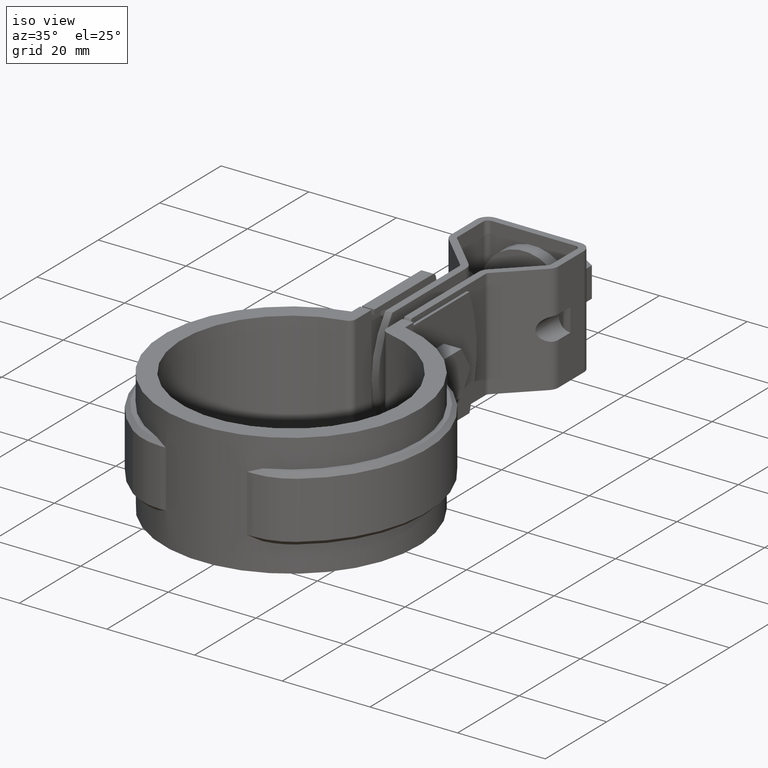
[diagram: clean part render]
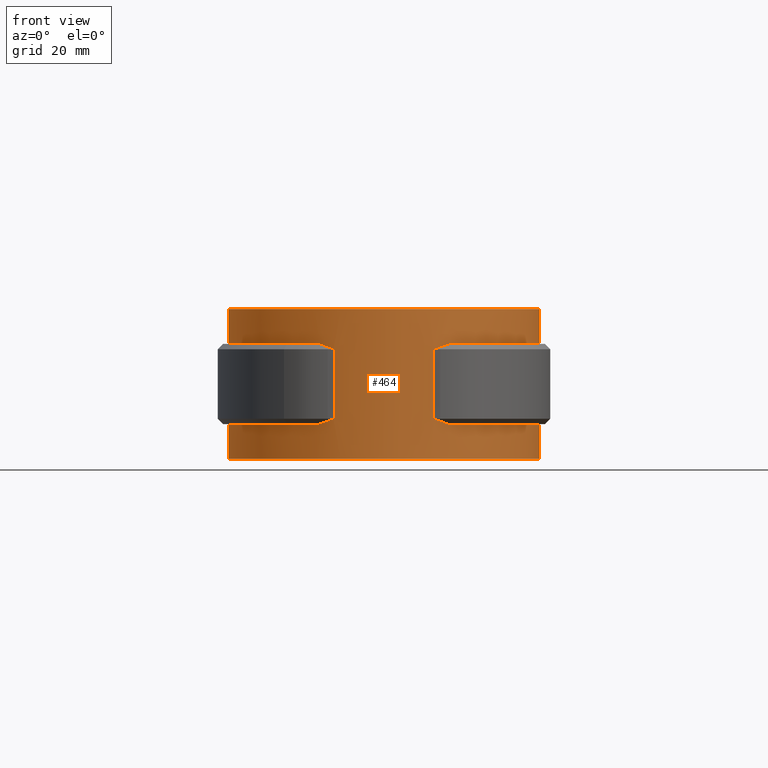
[diagram: tour spotlight — one face highlighted and labeled with its STEP entity id]
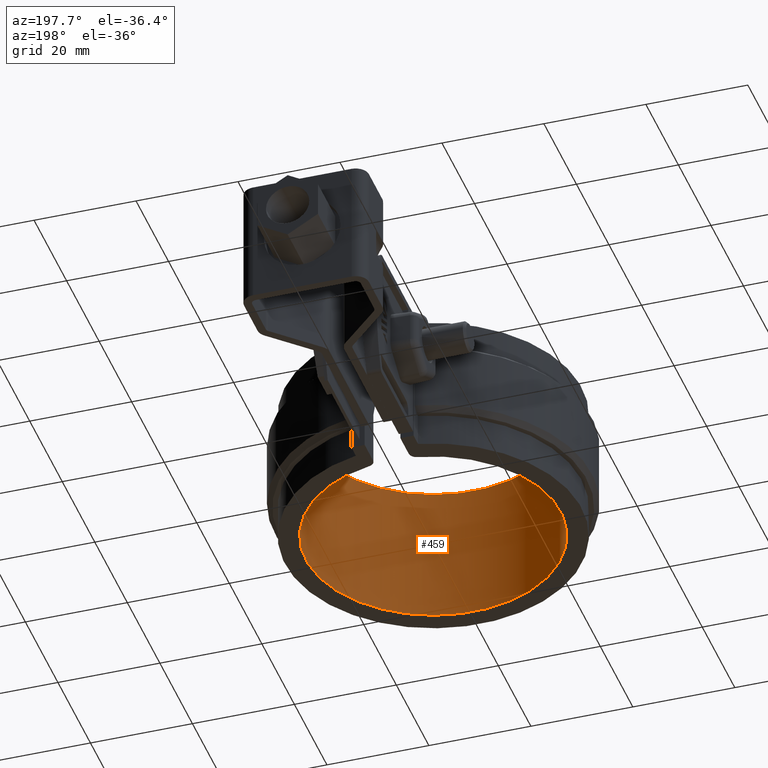
[diagram: tour spotlight — one face highlighted and labeled with its STEP entity id]
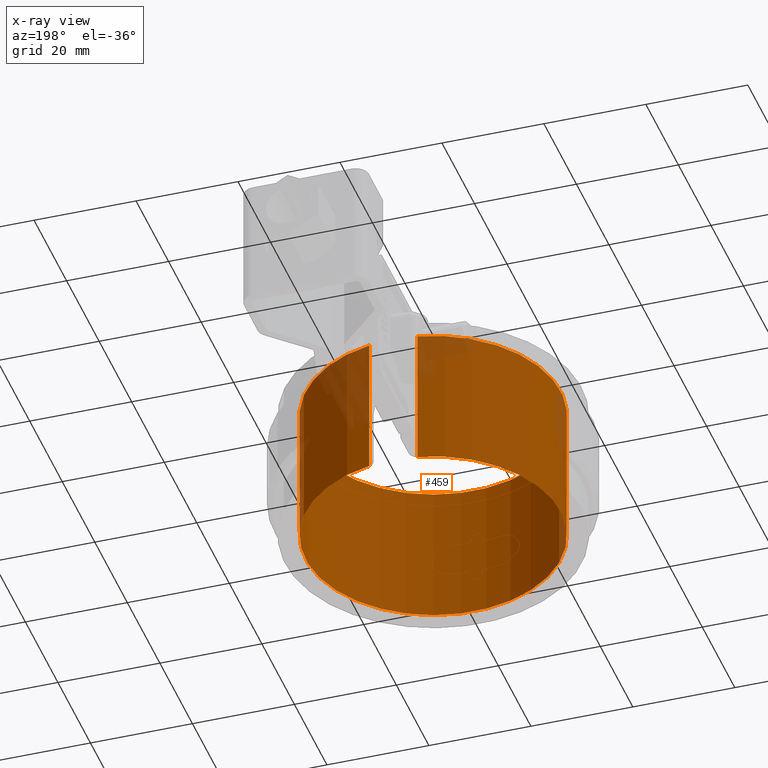
[diagram: x-ray of the same camera — body ghosted, this tour face saturated]
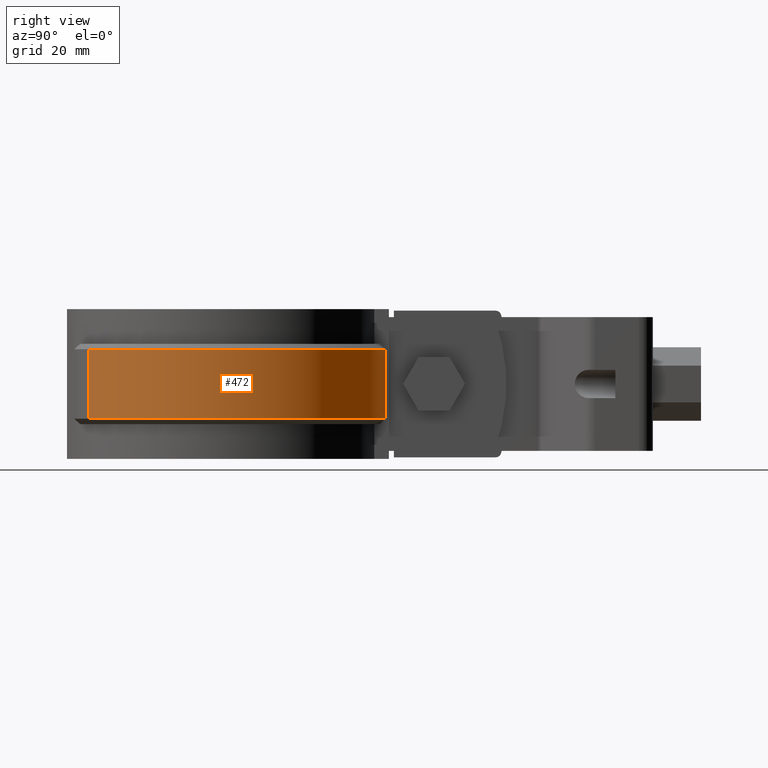
[diagram: tour spotlight — one face highlighted and labeled with its STEP entity id]
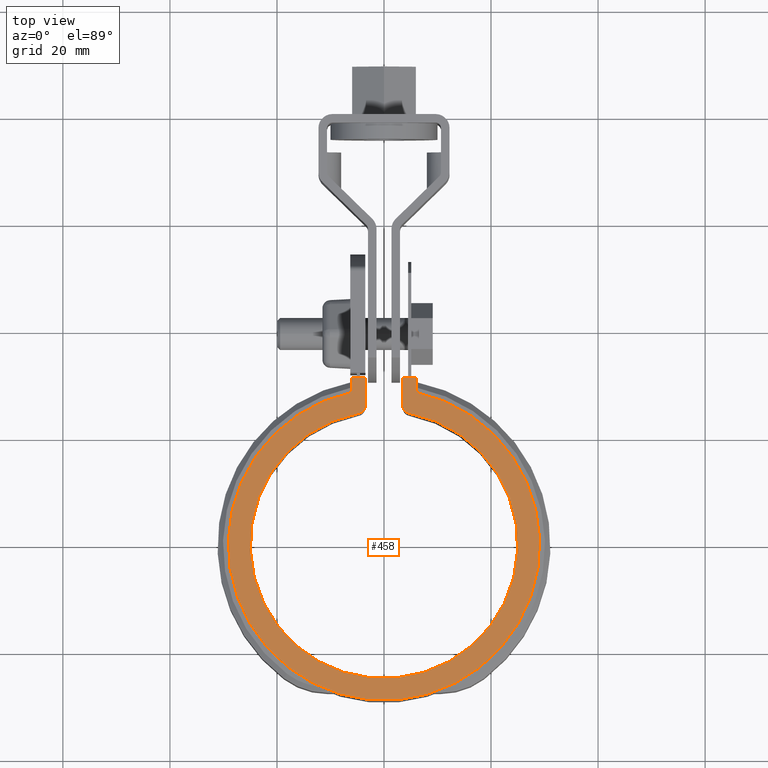
[diagram: tour spotlight — one face highlighted and labeled with its STEP entity id]
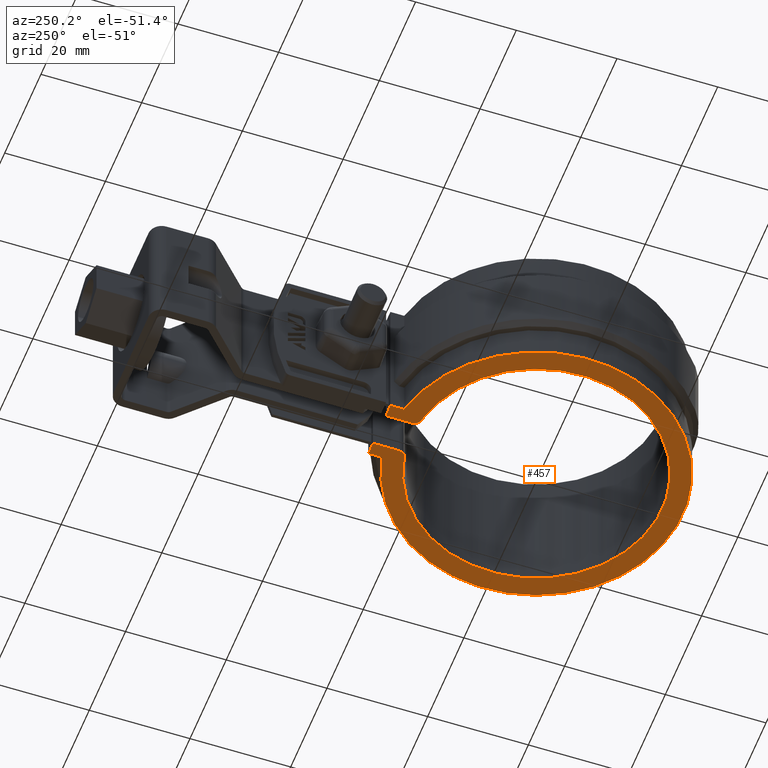
[diagram: tour spotlight — one face highlighted and labeled with its STEP entity id]
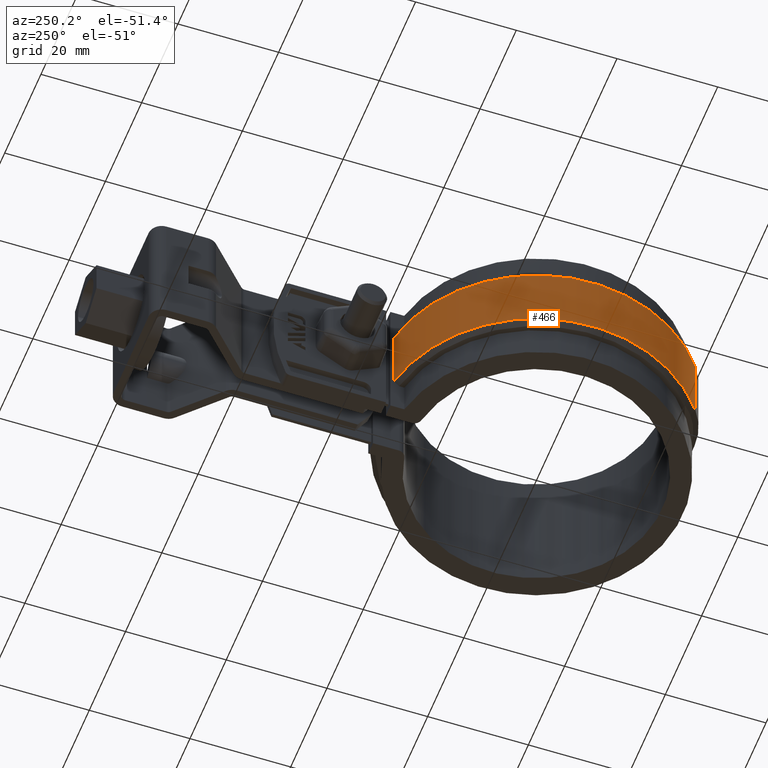
[diagram: tour spotlight — one face highlighted and labeled with its STEP entity id]
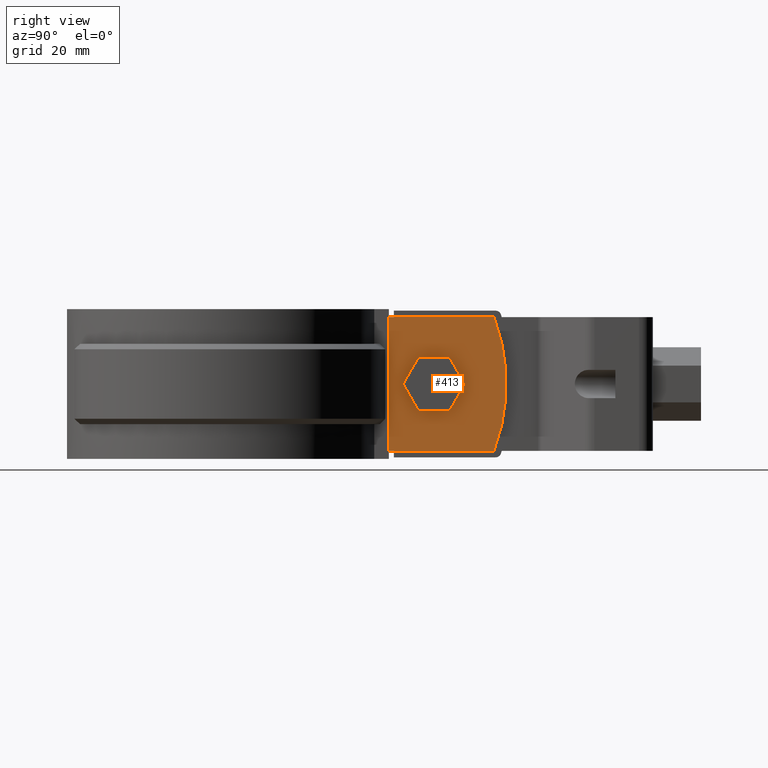
[diagram: tour spotlight — one face highlighted and labeled with its STEP entity id]
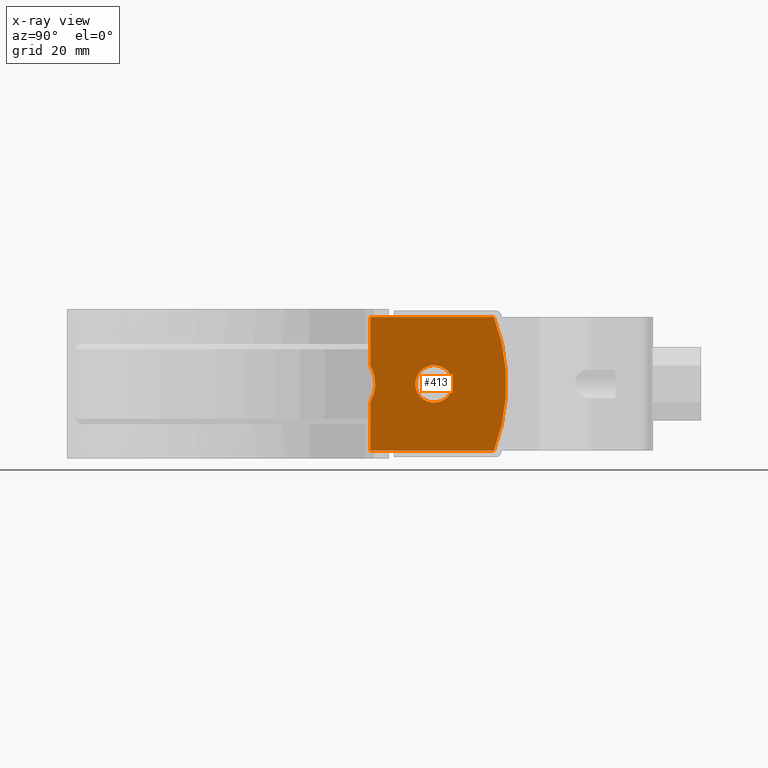
[diagram: x-ray of the same camera — body ghosted, this tour face saturated]
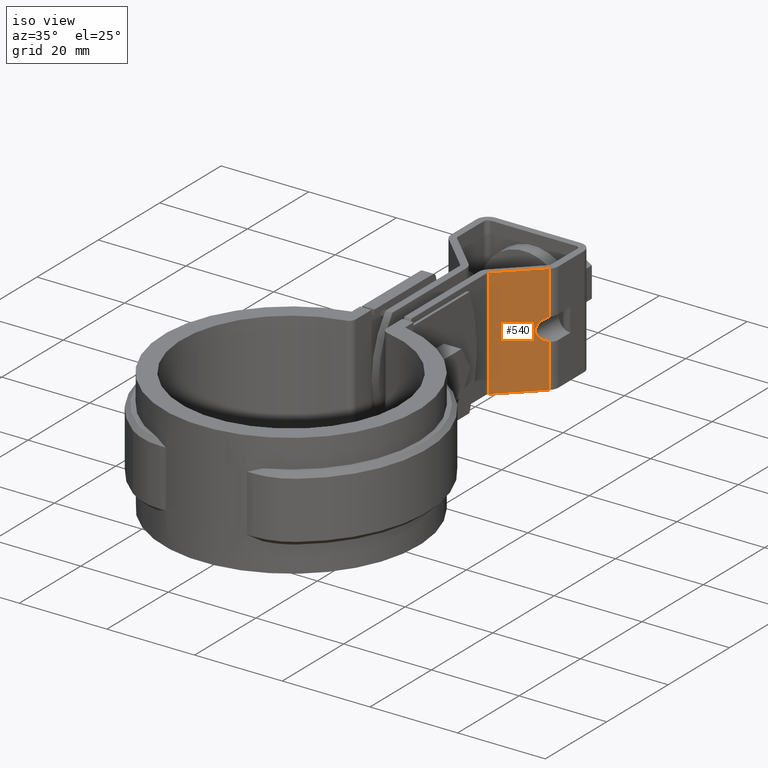
[diagram: tour spotlight — one face highlighted and labeled with its STEP entity id]
A machine part: a face-by-face anatomy tour. The part has 348 B-rep faces; the first image is the clean iso view, then the 8 largest visible faces are spotlighted one at a time (largest first), each with its STEP entity span.

Face 1 — front view, entity #464. In plain terms, the highlighted cylindrical surface (partial cylindrical patch) has radius 29.095 mm, axis along (0, 0, -1).
Definition (entity closure, byte-faithful):
#464 = ADVANCED_FACE( '', ( #922 ), #923, .T. );
#922 = FACE_OUTER_BOUND( '', #2240, .T. );
#923 = CYLINDRICAL_SURFACE( '', #2241, 29.0950000000000 );
#2240 = EDGE_LOOP( '', ( #4680, #4681, #4682, #4683, #4684, #4685, #4686, #4687, #4688, #4689, #4690, #4691, #4692, #4693, #4694, #4695, #4696, #4697, #4698, #4699 ) );
#2241 = AXIS2_PLACEMENT_3D( '', #4700, #4701, #4702 );
#4680 = ORIENTED_EDGE( '', *, *, #7324, .F. );
#4681 = ORIENTED_EDGE( '', *, *, #7325, .T. );
#4682 = ORIENTED_EDGE( '', *, *, #7251, .T. );
#4683 = ORIENTED_EDGE( '', *, *, #7326, .F. );
#4684 = ORIENTED_EDGE( '', *, *, #7327, .T. );
#4685 = ORIENTED_EDGE( '', *, *, #7328, .T. );
#4686 = ORIENTED_EDGE( '', *, *, #7329, .T. );
#4687 = ORIENTED_EDGE( '', *, *, #7323, .F. );
#4688 = ORIENTED_EDGE( '', *, *, #7300, .T. );
#4689 = ORIENTED_EDGE( '', *, *, #7313, .T. );
#4690 = ORIENTED_EDGE( '', *, *, #7330, .F. );
#4691 = ORIENTED_EDGE( '', *, *, #7331, .T. );
#4692 = ORIENTED_EDGE( '', *, *, #7332, .T. );
#4693 = ORIENTED_EDGE( '', *, *, #7333, .T. );
#4694 = ORIENTED_EDGE( '', *, *, #7334, .T. );
#4695 = ORIENTED_EDGE( '', *, *, #7335, .T. );
#4696 = ORIENTED_EDGE( '', *, *, #7336, .T. );
#4697 = ORIENTED_EDGE( '', *, *, #7314, .T. );
#4698 = ORIENTED_EDGE( '', *, *, #7305, .F. );
#4699 = ORIENTED_EDGE( '', *, *, #7322, .F. );
#4700 = CARTESIAN_POINT( '', ( 0.000000000000000, 0.000000000000000, -26.5000000000000 ) );
#4701 = DIRECTION( '', ( 0.000000000000000, 0.000000000000000, -1.00000000000000 ) );
#4702 = DIRECTION( '', ( -1.00000000000000, 6.07153216591882E-017, 0.000000000000000 ) );
#7251 = EDGE_CURVE( '', #8424, #8427, #8429, .T. );
#7300 = EDGE_CURVE( '', #8502, #8500, #8503, .T. );
#7305 = EDGE_CURVE( '', #8509, #8511, #8512, .T. );
#7313 = EDGE_CURVE( '', #8500, #8522, #8524, .T. );
#7314 = EDGE_CURVE( '', #8525, #8511, #8526, .T. );
#7322 = EDGE_CURVE( '', #8539, #8509, #8541, .T. );
#7323 = EDGE_CURVE( '', #8502, #8530, #8542, .T. );
#7324 = EDGE_CURVE( '', #8543, #8539, #8544, .T. );
#7325 = EDGE_CURVE( '', #8543, #8424, #8545, .F. );
#7326 = EDGE_CURVE( '', #8546, #8427, #8547, .T. );
#7327 = EDGE_CURVE( '', #8546, #8548, #8549, .F. );
#7328 = EDGE_CURVE( '', #8548, #8550, #8551, .T. );
#7329 = EDGE_CURVE( '', #8550, #8530, #8552, .T. );
#7330 = EDGE_CURVE( '', #8553, #8522, #8554, .T. );
#7331 = EDGE_CURVE( '', #8553, #8555, #8556, .F. );
#7332 = EDGE_CURVE( '', #8555, #8557, #8558, .F. );
#7333 = EDGE_CURVE( '', #8557, #8559, #8560, .T. );
#7334 = EDGE_CURVE( '', #8559, #8561, #8562, .T. );
#7335 = EDGE_CURVE( '', #8561, #8563, #8564, .T. );
#7336 = EDGE_CURVE( '', #8563, #8525, #8565, .T. );
#8424 = VERTEX_POINT( '', #11864 );
#8427 = VERTEX_POINT( '', #11868 );
#8429 = ELLIPSE( '', #11871, 41.1465435972452, 29.0950000000000 );
#8500 = VERTEX_POINT( '', #12013 );
#8502 = VERTEX_POINT( '', #12016 );
#8503 = CIRCLE( '', #12017, 29.0950000000000 );
#8509 = VERTEX_POINT( '', #12024 );
#8511 = VERTEX_POINT( '', #12027 );
#8512 = CIRCLE( '', #12028, 29.0950000000000 );
#8522 = VERTEX_POINT( '', #12045 );
#8524 = LINE( '', #12048, #12049 );
#8525 = VERTEX_POINT( '', #12050 );
#8526 = LINE( '', #12051, #12052 );
#8530 = VERTEX_POINT( '', #12060 );
#8539 = VERTEX_POINT( '', #12077 );
#8541 = LINE( '', #12080, #12081 );
#8542 = LINE( '', #12082, #12083 );
#8543 = VERTEX_POINT( '', #12084 );
#8544 = CIRCLE( '', #12085, 29.0950000000000 );
#8545 = B_SPLINE_CURVE_WITH_KNOTS( '', 3, ( #12086, #12087, #12088, #12089 ), .UNSPECIFIED., .F., .F., ( 4, 4 ), ( 0.00573825291567280, 0.00746422587440037 ), .UNSPECIFIED. );
#8546 = VERTEX_POINT( '', #12090 );
#8547 = LINE( '', #12091, #12092 );
#8548 = VERTEX_POINT( '', #12093 );
#8549 = ELLIPSE( '', #12094, 41.1465435972452, 29.0950000000000 );
#8550 = VERTEX_POINT( '', #12095 );
#8551 = B_SPLINE_CURVE_WITH_KNOTS( '', 3, ( #12096, #12097, #12098, #12099 ), .UNSPECIFIED., .F., .F., ( 4, 4 ), ( 0.00573825291567282, 0.00746422587440038 ), .UNSPECIFIED. );
#8552 = CIRCLE( '', #12100, 29.0950000000000 );
#8553 = VERTEX_POINT( '', #12101 );
#8554 = CIRCLE( '', #12102, 29.0950000000000 );
#8555 = VERTEX_POINT( '', #12103 );
#8556 = B_SPLINE_CURVE_WITH_KNOTS( '', 3, ( #12104, #12105, #12106, #12107 ), .UNSPECIFIED., .F., .F., ( 4, 4 ), ( 0.00573825291567277, 0.00746422587440036 ), .UNSPECIFIED. );
#8557 = VERTEX_POINT( '', #12108 );
#8558 = ELLIPSE( '', #12109, 41.1465435972452, 29.0950000000000 );
#8559 = VERTEX_POINT( '', #12110 );
#8560 = LINE( '', #12111, #12112 );
#8561 = VERTEX_POINT( '', #12113 );
#8562 = ELLIPSE( '', #12114, 41.1465435972452, 29.0950000000000 );
#8563 = VERTEX_POINT( '', #12115 );
#8564 = B_SPLINE_CURVE_WITH_KNOTS( '', 3, ( #12116, #12117, #12118, #12119 ), .UNSPECIFIED., .F., .F., ( 4, 4 ), ( 0.00573825291567275, 0.00746422587440036 ), .UNSPECIFIED. );
#8565 = CIRCLE( '', #12120, 29.0950000000000 );
#11864 = CARTESIAN_POINT( '', ( -10.5182995298670, -27.1271893125698, -5.54718931256978 ) );
#11868 = CARTESIAN_POINT( '', ( -9.26620877166062, -27.5800000000000, -6.00000000000000 ) );
#11871 = AXIS2_PLACEMENT_3D( '', #13966, #13967, #13968 );
#12013 = CARTESIAN_POINT( '', ( 6.09999999999998, 28.4483571581910, -26.5000000000000 ) );
#12016 = CARTESIAN_POINT( '', ( -6.10000000000000, 28.4483571581911, -26.5000000000000 ) );
#12017 = AXIS2_PLACEMENT_3D( '', #14029, #14030, #14031 );
#12024 = CARTESIAN_POINT( '', ( -6.10000000000000, 28.4483571581911, 1.50000000000000 ) );
#12027 = CARTESIAN_POINT( '', ( 6.09999999999998, 28.4483571581910, 1.50000000000000 ) );
#12028 = AXIS2_PLACEMENT_3D( '', #14040, #14041, #14042 );
#12045 = CARTESIAN_POINT( '', ( 6.09999999999998, 28.4483571581910, -20.0000000000000 ) );
#12048 = CARTESIAN_POINT( '', ( 6.09999999999998, 28.4483571581910, -26.5000000000000 ) );
#12049 = VECTOR( '', #14051, 1000.00000000000 );
#12050 = CARTESIAN_POINT( '', ( 6.09999999999999, 28.4483571581911, -5.00000000000000 ) );
#12051 = CARTESIAN_POINT( '', ( 6.09999999999998, 28.4483571581910, -26.5000000000000 ) );
#12052 = VECTOR( '', #14052, 1000.00000000000 );
#12060 = CARTESIAN_POINT( '', ( -6.09999999999999, 28.4483571581911, -20.0000000000000 ) );
#12077 = CARTESIAN_POINT( '', ( -6.09999999999999, 28.4483571581911, -5.00000000000000 ) );
#12080 = CARTESIAN_POINT( '', ( -6.10000000000000, 28.4483571581911, -26.5000000000000 ) );
#12081 = VECTOR( '', #14057, 1000.00000000000 );
#12082 = CARTESIAN_POINT( '', ( -6.10000000000000, 28.4483571581911, -26.5000000000000 ) );
#12083 = VECTOR( '', #14058, 1000.00000000000 );
#12084 = CARTESIAN_POINT( '', ( -12.0374609728303, -26.4880833268017, -5.00000000000000 ) );
#12085 = AXIS2_PLACEMENT_3D( '', #14059, #14060, #14061 );
#12086 = CARTESIAN_POINT( '', ( -10.5182995298670, -27.1271893125698, -5.54718931256977 ) );
#12087 = CARTESIAN_POINT( '', ( -11.0241136981870, -26.9310648682885, -5.35106486828851 ) );
#12088 = CARTESIAN_POINT( '', ( -11.5302444992833, -26.7185869245807, -5.16766781732531 ) );
#12089 = CARTESIAN_POINT( '', ( -12.0374609728303, -26.4880833268017, -5.00000000000000 ) );
#12090 = CARTESIAN_POINT( '', ( -9.26620877166062, -27.5800000000000, -19.0000000000000 ) );
#12091 = CARTESIAN_POINT( '', ( -9.26620877166062, -27.5800000000000, -20.0000000000000 ) );
#12092 = VECTOR( '', #14062, 1000.00000000000 );
#12093 = CARTESIAN_POINT( '', ( -10.5182995298670, -27.1271893125698, -19.4528106874302 ) );
#12094 = AXIS2_PLACEMENT_3D( '', #14063, #14064, #14065 );
#12095 = CARTESIAN_POINT( '', ( -12.0374609728303, -26.4880833268017, -20.0000000000000 ) );
#12096 = CARTESIAN_POINT( '', ( -10.5182995298670, -27.1271893125698, -19.4528106874302 ) );
#12097 = CARTESIAN_POINT( '', ( -11.0241136981870, -26.9310648682885, -19.6489351317115 ) );
#12098 = CARTESIAN_POINT( '', ( -11.5302444992833, -26.7185869245807, -19.8323321826747 ) );
#12099 = CARTESIAN_POINT( '', ( -12.0374609728303, -26.4880833268017, -20.0000000000000 ) );
#12100 = AXIS2_PLACEMENT_3D( '', #14066, #14067, #14068 );
#12101 = CARTESIAN_POINT( '', ( 12.0374609728303, -26.4880833268017, -20.0000000000000 ) );
#12102 = AXIS2_PLACEMENT_3D( '', #14069, #14070, #14071 );
#12103 = CARTESIAN_POINT( '', ( 10.5182995298670, -27.1271893125698, -19.4528106874302 ) );
#12104 = CARTESIAN_POINT( '', ( 10.5182995298670, -27.1271893125698, -19.4528106874302 ) );
#12105 = CARTESIAN_POINT( '', ( 11.0241136981870, -26.9310648682885, -19.6489351317115 ) );
#12106 = CARTESIAN_POINT( '', ( 11.5302444992833, -26.7185869245807, -19.8323321826747 ) );
#12107 = CARTESIAN_POINT( '', ( 12.0374609728303, -26.4880833268017, -20.0000000000000 ) );
#12108 = CARTESIAN_POINT( '', ( 9.26620877166060, -27.5800000000000, -19.0000000000000 ) );
#12109 = AXIS2_PLACEMENT_3D( '', #14072, #14073, #14074 );
#12110 = CARTESIAN_POINT( '', ( 9.26620877166060, -27.5800000000000, -6.00000000000000 ) );
#12111 = CARTESIAN_POINT( '', ( 9.26620877166060, -27.5800000000000, -20.0000000000000 ) );
#12112 = VECTOR( '', #14075, 1000.00000000000 );
#12113 = CARTESIAN_POINT( '', ( 10.5182995298669, -27.1271893125698, -5.54718931256978 ) );
#12114 = AXIS2_PLACEMENT_3D( '', #14076, #14077, #14078 );
#12115 = CARTESIAN_POINT( '', ( 12.0374609728303, -26.4880833268017, -5.00000000000000 ) );
#12116 = CARTESIAN_POINT( '', ( 10.5182995298669, -27.1271893125698, -5.54718931256979 ) );
#12117 = CARTESIAN_POINT( '', ( 11.0241136981870, -26.9310648682885, -5.35106486828852 ) );
#12118 = CARTESIAN_POINT( '', ( 11.5302444992833, -26.7185869245807, -5.16766781732531 ) );
#12119 = CARTESIAN_POINT( '', ( 12.0374609728303, -26.4880833268017, -4.99999999999999 ) );
#12120 = AXIS2_PLACEMENT_3D( '', #14079, #14080, #14081 );
#13966 = CARTESIAN_POINT( '', ( 0.000000000000000, 0.000000000000000, 21.5800000000000 ) );
#13967 = DIRECTION( '', ( -3.92523114670943E-017, -0.707106781186547, 0.707106781186548 ) );
#13968 = DIRECTION( '', ( 3.92523114670944E-017, 0.707106781186548, 0.707106781186547 ) );
#14029 = CARTESIAN_POINT( '', ( 0.000000000000000, 0.000000000000000, -26.5000000000000 ) );
#14030 = DIRECTION( '', ( 0.000000000000000, 0.000000000000000, 1.00000000000000 ) );
#14031 = DIRECTION( '', ( 1.00000000000000, 5.85301484199874E-017, 0.000000000000000 ) );
#14040 = CARTESIAN_POINT( '', ( 0.000000000000000, 0.000000000000000, 1.50000000000000 ) );
#14041 = DIRECTION( '', ( 0.000000000000000, 0.000000000000000, 1.00000000000000 ) );
#14042 = DIRECTION( '', ( 1.00000000000000, 5.85301484199874E-017, 0.000000000000000 ) );
#14051 = DIRECTION( '', ( 0.000000000000000, 0.000000000000000, 1.00000000000000 ) );
#14052 = DIRECTION( '', ( 0.000000000000000, 0.000000000000000, 1.00000000000000 ) );
#14057 = DIRECTION( '', ( 0.000000000000000, 0.000000000000000, 1.00000000000000 ) );
#14058 = DIRECTION( '', ( 0.000000000000000, 0.000000000000000, 1.00000000000000 ) );
#14059 = CARTESIAN_POINT( '', ( 0.000000000000000, 0.000000000000000, -5.00000000000000 ) );
#14060 = DIRECTION( '', ( 0.000000000000000, 0.000000000000000, -1.00000000000000 ) );
#14061 = DIRECTION( '', ( 1.00000000000000, -5.55111512312578E-017, 0.000000000000000 ) );
#14062 = DIRECTION( '', ( 0.000000000000000, 0.000000000000000, 1.00000000000000 ) );
#14063 = CARTESIAN_POINT( '', ( 0.000000000000000, 0.000000000000000, -46.5800000000000 ) );
#14064 = DIRECTION( '', ( 3.92523114670944E-017, 0.707106781186547, 0.707106781186548 ) );
#14065 = DIRECTION( '', ( -3.92523114670944E-017, -0.707106781186548, 0.707106781186547 ) );
#14066 = CARTESIAN_POINT( '', ( 0.000000000000000, 0.000000000000000, -20.0000000000000 ) );
#14067 = DIRECTION( '', ( 0.000000000000000, 0.000000000000000, -1.00000000000000 ) );
#14068 = DIRECTION( '', ( 1.00000000000000, -5.55111512312578E-017, 0.000000000000000 ) );
#14069 = CARTESIAN_POINT( '', ( 0.000000000000000, 0.000000000000000, -20.0000000000000 ) );
#14070 = DIRECTION( '', ( 0.000000000000000, 0.000000000000000, 1.00000000000000 ) );
#14071 = DIRECTION( '', ( 1.00000000000000, -5.55111512312578E-017, 0.000000000000000 ) );
#14072 = CARTESIAN_POINT( '', ( 0.000000000000000, 0.000000000000000, -46.5800000000000 ) );
#14073 = DIRECTION( '', ( 3.92523114670944E-017, 0.707106781186548, 0.707106781186547 ) );
#14074 = DIRECTION( '', ( -3.92523114670944E-017, -0.707106781186547, 0.707106781186548 ) );
#14075 = DIRECTION( '', ( 0.000000000000000, 0.000000000000000, 1.00000000000000 ) );
#14076 = CARTESIAN_POINT( '', ( 0.000000000000000, 0.000000000000000, 21.5800000000000 ) );
#14077 = DIRECTION( '', ( -3.92523114670944E-017, -0.707106781186547, 0.707106781186548 ) );
#14078 = DIRECTION( '', ( 3.92523114670944E-017, 0.707106781186548, 0.707106781186547 ) );
#14079 = CARTESIAN_POINT( '', ( 0.000000000000000, 0.000000000000000, -5.00000000000000 ) );
#14080 = DIRECTION( '', ( 0.000000000000000, 0.000000000000000, 1.00000000000000 ) );
#14081 = DIRECTION( '', ( 1.00000000000000, -5.55111512312578E-017, 0.000000000000000 ) );

Face 2 — auxiliary view, entity #459. An x-ray twin of the same camera follows (body ghosted, this face saturated) — the face is partly hidden behind the body. In plain terms, the highlighted cylindrical surface (partial cylindrical patch) has radius 25 mm, axis along (0, 0, -1).
Definition (entity closure, byte-faithful):
#459 = ADVANCED_FACE( '', ( #912 ), #913, .F. );
#912 = FACE_OUTER_BOUND( '', #2230, .T. );
#913 = CYLINDRICAL_SURFACE( '', #2231, 25.0000000000000 );
#2230 = EDGE_LOOP( '', ( #4633, #4634, #4635, #4636 ) );
#2231 = AXIS2_PLACEMENT_3D( '', #4637, #4638, #4639 );
#4633 = ORIENTED_EDGE( '', *, *, #7297, .F. );
#4634 = ORIENTED_EDGE( '', *, *, #7308, .T. );
#4635 = ORIENTED_EDGE( '', *, *, #7302, .T. );
#4636 = ORIENTED_EDGE( '', *, *, #7309, .T. );
#4637 = CARTESIAN_POINT( '', ( 0.000000000000000, 0.000000000000000, -98.2330400826129 ) );
#4638 = DIRECTION( '', ( 0.000000000000000, 0.000000000000000, -1.00000000000000 ) );
#4639 = DIRECTION( '', ( -1.00000000000000, 0.000000000000000, 0.000000000000000 ) );
#7297 = EDGE_CURVE( '', #8495, #8497, #8498, .F. );
#7302 = EDGE_CURVE( '', #8505, #8506, #8507, .F. );
#7308 = EDGE_CURVE( '', #8495, #8505, #8515, .T. );
#7309 = EDGE_CURVE( '', #8506, #8497, #8516, .F. );
#8495 = VERTEX_POINT( '', #12008 );
#8497 = VERTEX_POINT( '', #12010 );
#8498 = CIRCLE( '', #12011, 25.0000000000000 );
#8505 = VERTEX_POINT( '', #12020 );
#8506 = VERTEX_POINT( '', #12021 );
#8507 = CIRCLE( '', #12022, 25.0000000000000 );
#8515 = LINE( '', #12032, #12033 );
#8516 = LINE( '', #12034, #12035 );
#12008 = CARTESIAN_POINT( '', ( -4.71698113207547, 24.5509692069304, -26.5000000000000 ) );
#12010 = CARTESIAN_POINT( '', ( 4.71698113207547, 24.5509692069304, -26.5000000000000 ) );
#12011 = AXIS2_PLACEMENT_3D( '', #14022, #14023, #14024 );
#12020 = CARTESIAN_POINT( '', ( -4.71698113207547, 24.5509692069304, 1.50000000000000 ) );
#12021 = CARTESIAN_POINT( '', ( 4.71698113207547, 24.5509692069304, 1.50000000000000 ) );
#12022 = AXIS2_PLACEMENT_3D( '', #14033, #14034, #14035 );
#12032 = CARTESIAN_POINT( '', ( -4.71698113207548, 24.5509692069304, -98.2330400826129 ) );
#12033 = VECTOR( '', #14047, 1000.00000000000 );
#12034 = CARTESIAN_POINT( '', ( 4.71698113207548, 24.5509692069304, -98.2330400826129 ) );
#12035 = VECTOR( '', #14048, 1000.00000000000 );
#14022 = CARTESIAN_POINT( '', ( 0.000000000000000, 0.000000000000000, -26.5000000000000 ) );
#14023 = DIRECTION( '', ( 0.000000000000000, 0.000000000000000, -1.00000000000000 ) );
#14024 = DIRECTION( '', ( -1.00000000000000, 0.000000000000000, 0.000000000000000 ) );
#14033 = CARTESIAN_POINT( '', ( 0.000000000000000, 0.000000000000000, 1.50000000000000 ) );
#14034 = DIRECTION( '', ( 0.000000000000000, 0.000000000000000, -1.00000000000000 ) );
#14035 = DIRECTION( '', ( -1.00000000000000, 0.000000000000000, 0.000000000000000 ) );
#14047 = DIRECTION( '', ( 0.000000000000000, 0.000000000000000, 1.00000000000000 ) );
#14048 = DIRECTION( '', ( 0.000000000000000, 0.000000000000000, 1.00000000000000 ) );

Face 3 — right view, entity #472. In plain terms, the highlighted cylindrical surface (partial cylindrical patch) has radius 31.095 mm, axis along (0, 0, -1).
Definition (entity closure, byte-faithful):
#472 = ADVANCED_FACE( '', ( #938 ), #939, .T. );
#938 = FACE_OUTER_BOUND( '', #2256, .T. );
#939 = CYLINDRICAL_SURFACE( '', #2257, 31.0950000000000 );
#2256 = EDGE_LOOP( '', ( #4752, #4753, #4754, #4755 ) );
#2257 = AXIS2_PLACEMENT_3D( '', #4756, #4757, #4758 );
#4752 = ORIENTED_EDGE( '', *, *, #7310, .T. );
#4753 = ORIENTED_EDGE( '', *, *, #7354, .T. );
#4754 = ORIENTED_EDGE( '', *, *, #7351, .F. );
#4755 = ORIENTED_EDGE( '', *, *, #7355, .T. );
#4756 = CARTESIAN_POINT( '', ( 0.000000000000000, 0.000000000000000, -20.0000000000000 ) );
#4757 = DIRECTION( '', ( 0.000000000000000, 0.000000000000000, -1.00000000000000 ) );
#4758 = DIRECTION( '', ( 0.318481140115505, 0.947929197456608, 0.000000000000000 ) );
#7310 = EDGE_CURVE( '', #8517, #8518, #8519, .T. );
#7351 = EDGE_CURVE( '', #8587, #8588, #8589, .T. );
#7354 = EDGE_CURVE( '', #8518, #8588, #8592, .F. );
#7355 = EDGE_CURVE( '', #8587, #8517, #8593, .T. );
#8517 = VERTEX_POINT( '', #12036 );
#8518 = VERTEX_POINT( '', #12037 );
#8519 = LINE( '', #12038, #12039 );
#8587 = VERTEX_POINT( '', #12148 );
#8588 = VERTEX_POINT( '', #12149 );
#8589 = LINE( '', #12150, #12151 );
#8592 = CIRCLE( '', #12154, 31.0950000000000 );
#8593 = CIRCLE( '', #12155, 31.0950000000000 );
#12036 = CARTESIAN_POINT( '', ( 6.10000000000001, 30.4908023016778, -19.0000000000000 ) );
#12037 = CARTESIAN_POINT( '', ( 6.10000000000001, 30.4908023016778, -6.00000000000000 ) );
#12038 = CARTESIAN_POINT( '', ( 6.10000000000001, 30.4908023016778, -20.0000000000000 ) );
#12039 = VECTOR( '', #14049, 1000.00000000000 );
#12148 = CARTESIAN_POINT( '', ( 18.6948570380802, -24.8475621606173, -19.0000000000000 ) );
#12149 = CARTESIAN_POINT( '', ( 18.6948570380802, -24.8475621606173, -6.00000000000000 ) );
#12150 = CARTESIAN_POINT( '', ( 18.6948570380802, -24.8475621606173, -20.0000000000000 ) );
#12151 = VECTOR( '', #14112, 1000.00000000000 );
#12154 = AXIS2_PLACEMENT_3D( '', #14119, #14120, #14121 );
#12155 = AXIS2_PLACEMENT_3D( '', #14122, #14123, #14124 );
#14049 = DIRECTION( '', ( 0.000000000000000, 0.000000000000000, 1.00000000000000 ) );
#14112 = DIRECTION( '', ( 0.000000000000000, 0.000000000000000, 1.00000000000000 ) );
#14119 = CARTESIAN_POINT( '', ( 0.000000000000000, 0.000000000000000, -6.00000000000000 ) );
#14120 = DIRECTION( '', ( 0.000000000000000, 0.000000000000000, 1.00000000000000 ) );
#14121 = DIRECTION( '', ( 1.00000000000000, 0.000000000000000, 0.000000000000000 ) );
#14122 = CARTESIAN_POINT( '', ( 0.000000000000000, 0.000000000000000, -19.0000000000000 ) );
#14123 = DIRECTION( '', ( 0.000000000000000, 0.000000000000000, 1.00000000000000 ) );
#14124 = DIRECTION( '', ( 1.00000000000000, 0.000000000000000, 0.000000000000000 ) );

Face 4 — top view, entity #458. In plain terms, the highlighted planar face has unit normal (0, 0, -1).
Definition (entity closure, byte-faithful):
#458 = ADVANCED_FACE( '', ( #910 ), #911, .F. );
#910 = FACE_OUTER_BOUND( '', #2228, .T. );
#911 = PLANE( '', #2229 );
#2228 = EDGE_LOOP( '', ( #4620, #4621, #4622, #4623, #4624, #4625, #4626, #4627, #4628, #4629 ) );
#2229 = AXIS2_PLACEMENT_3D( '', #4630, #4631, #4632 );
#4620 = ORIENTED_EDGE( '', *, *, #7302, .F. );
#4621 = ORIENTED_EDGE( '', *, *, #7303, .T. );
#4622 = ORIENTED_EDGE( '', *, *, #7293, .T. );
#4623 = ORIENTED_EDGE( '', *, *, #7130, .T. );
#4624 = ORIENTED_EDGE( '', *, *, #7304, .T. );
#4625 = ORIENTED_EDGE( '', *, *, #7305, .T. );
#4626 = ORIENTED_EDGE( '', *, *, #7306, .T. );
#4627 = ORIENTED_EDGE( '', *, *, #7284, .T. );
#4628 = ORIENTED_EDGE( '', *, *, #7292, .T. );
#4629 = ORIENTED_EDGE( '', *, *, #7307, .T. );
#4630 = CARTESIAN_POINT( '', ( -6.50000000000000, 27.7488738510232, 1.50000000000000 ) );
#4631 = DIRECTION( '', ( 0.000000000000000, 0.000000000000000, -1.00000000000000 ) );
#4632 = DIRECTION( '', ( 1.00000000000000, -7.52330484414052E-017, 0.000000000000000 ) );
#7130 = EDGE_CURVE( '', #8210, #8211, #8212, .T. );
#7284 = EDGE_CURVE( '', #8474, #8475, #8476, .T. );
#7292 = EDGE_CURVE( '', #8475, #8487, #8489, .T. );
#7293 = EDGE_CURVE( '', #8490, #8210, #8491, .T. );
#7302 = EDGE_CURVE( '', #8505, #8506, #8507, .F. );
#7303 = EDGE_CURVE( '', #8505, #8490, #8508, .F. );
#7304 = EDGE_CURVE( '', #8211, #8509, #8510, .T. );
#7305 = EDGE_CURVE( '', #8509, #8511, #8512, .T. );
#7306 = EDGE_CURVE( '', #8511, #8474, #8513, .T. );
#7307 = EDGE_CURVE( '', #8487, #8506, #8514, .F. );
#8210 = VERTEX_POINT( '', #10780 );
#8211 = VERTEX_POINT( '', #10781 );
#8212 = LINE( '', #10782, #10783 );
#8474 = VERTEX_POINT( '', #11975 );
#8475 = VERTEX_POINT( '', #11976 );
#8476 = LINE( '', #11977, #11978 );
#8487 = VERTEX_POINT( '', #11995 );
#8489 = LINE( '', #11998, #11999 );
#8490 = VERTEX_POINT( '', #12000 );
#8491 = LINE( '', #12001, #12002 );
#8505 = VERTEX_POINT( '', #12020 );
#8506 = VERTEX_POINT( '', #12021 );
#8507 = CIRCLE( '', #12022, 25.0000000000000 );
#8508 = CIRCLE( '', #12023, 1.50000000000000 );
#8509 = VERTEX_POINT( '', #12024 );
#8510 = LINE( '', #12025, #12026 );
#8511 = VERTEX_POINT( '', #12027 );
#8512 = CIRCLE( '', #12028, 29.0950000000000 );
#8513 = LINE( '', #12029, #12030 );
#8514 = CIRCLE( '', #12031, 1.50000000000000 );
#10780 = CARTESIAN_POINT( '', ( -3.50000000000000, 31.1900000000000, 1.50000000000000 ) );
#10781 = CARTESIAN_POINT( '', ( -6.10000000000000, 31.1900000000000, 1.50000000000000 ) );
#10782 = CARTESIAN_POINT( '', ( -3.50000000000000, 31.1900000000000, 1.50000000000000 ) );
#10783 = VECTOR( '', #13873, 1000.00000000000 );
#11975 = CARTESIAN_POINT( '', ( 6.10000000000001, 31.1900000000000, 1.50000000000000 ) );
#11976 = CARTESIAN_POINT( '', ( 3.50000000000002, 31.1900000000000, 1.50000000000000 ) );
#11977 = CARTESIAN_POINT( '', ( 4.50000000000001, 31.1900000000000, 1.50000000000000 ) );
#11978 = VECTOR( '', #14007, 1000.00000000000 );
#11995 = CARTESIAN_POINT( '', ( 3.50000000000000, 26.0240273593462, 1.50000000000000 ) );
#11998 = CARTESIAN_POINT( '', ( 3.50000000000000, 31.1900000000000, 1.50000000000000 ) );
#11999 = VECTOR( '', #14015, 1000.00000000000 );
#12000 = CARTESIAN_POINT( '', ( -3.50000000000000, 26.0240273593462, 1.50000000000000 ) );
#12001 = CARTESIAN_POINT( '', ( -3.50000000000000, 24.7487378466054, 1.50000000000000 ) );
#12002 = VECTOR( '', #14016, 1000.00000000000 );
#12020 = CARTESIAN_POINT( '', ( -4.71698113207547, 24.5509692069304, 1.50000000000000 ) );
#12021 = CARTESIAN_POINT( '', ( 4.71698113207547, 24.5509692069304, 1.50000000000000 ) );
#12022 = AXIS2_PLACEMENT_3D( '', #14033, #14034, #14035 );
#12023 = AXIS2_PLACEMENT_3D( '', #14036, #14037, #14038 );
#12024 = CARTESIAN_POINT( '', ( -6.10000000000000, 28.4483571581911, 1.50000000000000 ) );
#12025 = CARTESIAN_POINT( '', ( -6.10000000000000, 31.1900000000000, 1.50000000000000 ) );
#12026 = VECTOR( '', #14039, 1000.00000000000 );
#12027 = CARTESIAN_POINT( '', ( 6.09999999999998, 28.4483571581910, 1.50000000000000 ) );
#12028 = AXIS2_PLACEMENT_3D( '', #14040, #14041, #14042 );
#12029 = CARTESIAN_POINT( '', ( 6.10000000000001, 28.4483571581911, 1.50000000000000 ) );
#12030 = VECTOR( '', #14043, 1000.00000000000 );
#12031 = AXIS2_PLACEMENT_3D( '', #14044, #14045, #14046 );
#13873 = DIRECTION( '', ( -1.00000000000000, 0.000000000000000, 0.000000000000000 ) );
#14007 = DIRECTION( '', ( -1.00000000000000, 0.000000000000000, 0.000000000000000 ) );
#14015 = DIRECTION( '', ( -6.07153216591882E-017, -1.00000000000000, 0.000000000000000 ) );
#14016 = DIRECTION( '', ( 6.07153216591882E-017, 1.00000000000000, 0.000000000000000 ) );
#14033 = CARTESIAN_POINT( '', ( 0.000000000000000, 0.000000000000000, 1.50000000000000 ) );
#14034 = DIRECTION( '', ( 0.000000000000000, 0.000000000000000, -1.00000000000000 ) );
#14035 = DIRECTION( '', ( -1.00000000000000, 0.000000000000000, 0.000000000000000 ) );
#14036 = CARTESIAN_POINT( '', ( -5.00000000000000, 26.0240273593462, 1.50000000000000 ) );
#14037 = DIRECTION( '', ( 0.000000000000000, 0.000000000000000, -1.00000000000000 ) );
#14038 = DIRECTION( '', ( -1.00000000000000, 0.000000000000000, 0.000000000000000 ) );
#14039 = DIRECTION( '', ( -6.07153216591882E-017, -1.00000000000000, 0.000000000000000 ) );
#14040 = CARTESIAN_POINT( '', ( 0.000000000000000, 0.000000000000000, 1.50000000000000 ) );
#14041 = DIRECTION( '', ( 0.000000000000000, 0.000000000000000, 1.00000000000000 ) );
#14042 = DIRECTION( '', ( 1.00000000000000, 5.85301484199874E-017, 0.000000000000000 ) );
#14043 = DIRECTION( '', ( 6.07153216591882E-017, 1.00000000000000, 0.000000000000000 ) );
#14044 = CARTESIAN_POINT( '', ( 5.00000000000000, 26.0240273593462, 1.50000000000000 ) );
#14045 = DIRECTION( '', ( 0.000000000000000, 0.000000000000000, -1.00000000000000 ) );
#14046 = DIRECTION( '', ( -1.00000000000000, 0.000000000000000, 0.000000000000000 ) );

Face 5 — auxiliary view, entity #457. In plain terms, the highlighted planar face has unit normal (0, 0, -1).
Definition (entity closure, byte-faithful):
#457 = ADVANCED_FACE( '', ( #908 ), #909, .T. );
#908 = FACE_OUTER_BOUND( '', #2226, .T. );
#909 = PLANE( '', #2227 );
#2226 = EDGE_LOOP( '', ( #4607, #4608, #4609, #4610, #4611, #4612, #4613, #4614, #4615, #4616 ) );
#2227 = AXIS2_PLACEMENT_3D( '', #4617, #4618, #4619 );
#4607 = ORIENTED_EDGE( '', *, *, #7295, .F. );
#4608 = ORIENTED_EDGE( '', *, *, #7296, .T. );
#4609 = ORIENTED_EDGE( '', *, *, #7297, .T. );
#4610 = ORIENTED_EDGE( '', *, *, #7298, .T. );
#4611 = ORIENTED_EDGE( '', *, *, #7290, .F. );
#4612 = ORIENTED_EDGE( '', *, *, #7286, .F. );
#4613 = ORIENTED_EDGE( '', *, *, #7299, .F. );
#4614 = ORIENTED_EDGE( '', *, *, #7300, .F. );
#4615 = ORIENTED_EDGE( '', *, *, #7301, .F. );
#4616 = ORIENTED_EDGE( '', *, *, #7132, .F. );
#4617 = CARTESIAN_POINT( '', ( -6.50000000000000, 27.7488738510232, -26.5000000000000 ) );
#4618 = DIRECTION( '', ( 0.000000000000000, 0.000000000000000, -1.00000000000000 ) );
#4619 = DIRECTION( '', ( 1.00000000000000, -7.52330484414052E-017, 0.000000000000000 ) );
#7132 = EDGE_CURVE( '', #8213, #8215, #8216, .T. );
#7286 = EDGE_CURVE( '', #8477, #8479, #8480, .T. );
#7290 = EDGE_CURVE( '', #8479, #8485, #8486, .T. );
#7295 = EDGE_CURVE( '', #8492, #8213, #8494, .T. );
#7296 = EDGE_CURVE( '', #8492, #8495, #8496, .T. );
#7297 = EDGE_CURVE( '', #8495, #8497, #8498, .F. );
#7298 = EDGE_CURVE( '', #8497, #8485, #8499, .T. );
#7299 = EDGE_CURVE( '', #8500, #8477, #8501, .T. );
#7300 = EDGE_CURVE( '', #8502, #8500, #8503, .T. );
#7301 = EDGE_CURVE( '', #8215, #8502, #8504, .T. );
#8213 = VERTEX_POINT( '', #10784 );
#8215 = VERTEX_POINT( '', #10787 );
#8216 = LINE( '', #10788, #10789 );
#8477 = VERTEX_POINT( '', #11979 );
#8479 = VERTEX_POINT( '', #11982 );
#8480 = LINE( '', #11983, #11984 );
#8485 = VERTEX_POINT( '', #11992 );
#8486 = LINE( '', #11993, #11994 );
#8492 = VERTEX_POINT( '', #12003 );
#8494 = LINE( '', #12006, #12007 );
#8495 = VERTEX_POINT( '', #12008 );
#8496 = CIRCLE( '', #12009, 1.50000000000000 );
#8497 = VERTEX_POINT( '', #12010 );
#8498 = CIRCLE( '', #12011, 25.0000000000000 );
#8499 = CIRCLE( '', #12012, 1.50000000000000 );
#8500 = VERTEX_POINT( '', #12013 );
#8501 = LINE( '', #12014, #12015 );
#8502 = VERTEX_POINT( '', #12016 );
#8503 = CIRCLE( '', #12017, 29.0950000000000 );
#8504 = LINE( '', #12018, #12019 );
#10784 = CARTESIAN_POINT( '', ( -3.50000000000000, 31.1900000000000, -26.5000000000000 ) );
#10787 = CARTESIAN_POINT( '', ( -6.10000000000000, 31.1900000000000, -26.5000000000000 ) );
#10788 = CARTESIAN_POINT( '', ( -3.50000000000000, 31.1900000000000, -26.5000000000000 ) );
#10789 = VECTOR( '', #13875, 1000.00000000000 );
#11979 = CARTESIAN_POINT( '', ( 6.10000000000001, 31.1900000000000, -26.5000000000000 ) );
#11982 = CARTESIAN_POINT( '', ( 3.50000000000002, 31.1900000000000, -26.5000000000000 ) );
#11983 = CARTESIAN_POINT( '', ( 4.50000000000001, 31.1900000000000, -26.5000000000000 ) );
#11984 = VECTOR( '', #14009, 1000.00000000000 );
#11992 = CARTESIAN_POINT( '', ( 3.50000000000000, 26.0240273593462, -26.5000000000000 ) );
#11993 = CARTESIAN_POINT( '', ( 3.50000000000000, 31.1900000000000, -26.5000000000000 ) );
#11994 = VECTOR( '', #14013, 1000.00000000000 );
#12003 = CARTESIAN_POINT( '', ( -3.50000000000000, 26.0240273593462, -26.5000000000000 ) );
#12006 = CARTESIAN_POINT( '', ( -3.50000000000000, 24.7487378466054, -26.5000000000000 ) );
#12007 = VECTOR( '', #14018, 1000.00000000000 );
#12008 = CARTESIAN_POINT( '', ( -4.71698113207547, 24.5509692069304, -26.5000000000000 ) );
#12009 = AXIS2_PLACEMENT_3D( '', #14019, #14020, #14021 );
#12010 = CARTESIAN_POINT( '', ( 4.71698113207547, 24.5509692069304, -26.5000000000000 ) );
#12011 = AXIS2_PLACEMENT_3D( '', #14022, #14023, #14024 );
#12012 = AXIS2_PLACEMENT_3D( '', #14025, #14026, #14027 );
#12013 = CARTESIAN_POINT( '', ( 6.09999999999998, 28.4483571581910, -26.5000000000000 ) );
#12014 = CARTESIAN_POINT( '', ( 6.10000000000001, 28.4483571581911, -26.5000000000000 ) );
#12015 = VECTOR( '', #14028, 1000.00000000000 );
#12016 = CARTESIAN_POINT( '', ( -6.10000000000000, 28.4483571581911, -26.5000000000000 ) );
#12017 = AXIS2_PLACEMENT_3D( '', #14029, #14030, #14031 );
#12018 = CARTESIAN_POINT( '', ( -6.10000000000000, 31.1900000000000, -26.5000000000000 ) );
#12019 = VECTOR( '', #14032, 1000.00000000000 );
#13875 = DIRECTION( '', ( -1.00000000000000, 0.000000000000000, 0.000000000000000 ) );
#14009 = DIRECTION( '', ( -1.00000000000000, 0.000000000000000, 0.000000000000000 ) );
#14013 = DIRECTION( '', ( -6.07153216591882E-017, -1.00000000000000, 0.000000000000000 ) );
#14018 = DIRECTION( '', ( 6.07153216591882E-017, 1.00000000000000, 0.000000000000000 ) );
#14019 = CARTESIAN_POINT( '', ( -5.00000000000000, 26.0240273593462, -26.5000000000000 ) );
#14020 = DIRECTION( '', ( 0.000000000000000, 0.000000000000000, -1.00000000000000 ) );
#14021 = DIRECTION( '', ( -1.00000000000000, 0.000000000000000, 0.000000000000000 ) );
#14022 = CARTESIAN_POINT( '', ( 0.000000000000000, 0.000000000000000, -26.5000000000000 ) );
#14023 = DIRECTION( '', ( 0.000000000000000, 0.000000000000000, -1.00000000000000 ) );
#14024 = DIRECTION( '', ( -1.00000000000000, 0.000000000000000, 0.000000000000000 ) );
#14025 = CARTESIAN_POINT( '', ( 5.00000000000000, 26.0240273593462, -26.5000000000000 ) );
#14026 = DIRECTION( '', ( 0.000000000000000, 0.000000000000000, -1.00000000000000 ) );
#14027 = DIRECTION( '', ( -1.00000000000000, 0.000000000000000, 0.000000000000000 ) );
#14028 = DIRECTION( '', ( 6.07153216591882E-017, 1.00000000000000, 0.000000000000000 ) );
#14029 = CARTESIAN_POINT( '', ( 0.000000000000000, 0.000000000000000, -26.5000000000000 ) );
#14030 = DIRECTION( '', ( 0.000000000000000, 0.000000000000000, 1.00000000000000 ) );
#14031 = DIRECTION( '', ( 1.00000000000000, 5.85301484199874E-017, 0.000000000000000 ) );
#14032 = DIRECTION( '', ( -6.07153216591882E-017, -1.00000000000000, 0.000000000000000 ) );

Face 6 — auxiliary view, entity #466. In plain terms, the highlighted cylindrical surface (partial cylindrical patch) has radius 31.095 mm, axis along (0, 0, -1).
Definition (entity closure, byte-faithful):
#466 = ADVANCED_FACE( '', ( #926 ), #927, .T. );
#926 = FACE_OUTER_BOUND( '', #2244, .T. );
#927 = CYLINDRICAL_SURFACE( '', #2245, 31.0950000000000 );
#2244 = EDGE_LOOP( '', ( #4710, #4711, #4712, #4713 ) );
#2245 = AXIS2_PLACEMENT_3D( '', #4714, #4715, #4716 );
#4710 = ORIENTED_EDGE( '', *, *, #7319, .F. );
#4711 = ORIENTED_EDGE( '', *, *, #7339, .T. );
#4712 = ORIENTED_EDGE( '', *, *, #7340, .T. );
#4713 = ORIENTED_EDGE( '', *, *, #7341, .T. );
#4714 = CARTESIAN_POINT( '', ( 0.000000000000000, 0.000000000000000, -20.0000000000000 ) );
#4715 = DIRECTION( '', ( 0.000000000000000, 0.000000000000000, -1.00000000000000 ) );
#4716 = DIRECTION( '', ( 0.318481140115505, 0.947929197456608, 0.000000000000000 ) );
#7319 = EDGE_CURVE( '', #8533, #8535, #8536, .T. );
#7339 = EDGE_CURVE( '', #8533, #8569, #8570, .F. );
#7340 = EDGE_CURVE( '', #8569, #8571, #8572, .T. );
#7341 = EDGE_CURVE( '', #8571, #8535, #8573, .T. );
#8533 = VERTEX_POINT( '', #12064 );
#8535 = VERTEX_POINT( '', #12069 );
#8536 = LINE( '', #12070, #12071 );
#8569 = VERTEX_POINT( '', #12126 );
#8570 = CIRCLE( '', #12127, 31.0950000000000 );
#8571 = VERTEX_POINT( '', #12128 );
#8572 = LINE( '', #12129, #12130 );
#8573 = CIRCLE( '', #12131, 31.0950000000000 );
#12064 = CARTESIAN_POINT( '', ( -6.09999999999999, 30.4908023016778, -19.0000000000000 ) );
#12069 = CARTESIAN_POINT( '', ( -6.09999999999999, 30.4908023016778, -6.00000000000000 ) );
#12070 = CARTESIAN_POINT( '', ( -6.09999999999999, 30.4908023016778, -20.0000000000000 ) );
#12071 = VECTOR( '', #14055, 1000.00000000000 );
#12126 = CARTESIAN_POINT( '', ( -18.6948570380802, -24.8475621606173, -19.0000000000000 ) );
#12127 = AXIS2_PLACEMENT_3D( '', #14084, #14085, #14086 );
#12128 = CARTESIAN_POINT( '', ( -18.6948570380802, -24.8475621606173, -6.00000000000000 ) );
#12129 = CARTESIAN_POINT( '', ( -18.6948570380802, -24.8475621606173, -20.0000000000000 ) );
#12130 = VECTOR( '', #14087, 1000.00000000000 );
#12131 = AXIS2_PLACEMENT_3D( '', #14088, #14089, #14090 );
#14055 = DIRECTION( '', ( 0.000000000000000, 0.000000000000000, 1.00000000000000 ) );
#14084 = CARTESIAN_POINT( '', ( 0.000000000000000, 0.000000000000000, -19.0000000000000 ) );
#14085 = DIRECTION( '', ( 0.000000000000000, 0.000000000000000, -1.00000000000000 ) );
#14086 = DIRECTION( '', ( -1.00000000000000, 0.000000000000000, 0.000000000000000 ) );
#14087 = DIRECTION( '', ( 0.000000000000000, 0.000000000000000, 1.00000000000000 ) );
#14088 = CARTESIAN_POINT( '', ( 0.000000000000000, 0.000000000000000, -6.00000000000000 ) );
#14089 = DIRECTION( '', ( 0.000000000000000, 0.000000000000000, -1.00000000000000 ) );
#14090 = DIRECTION( '', ( -1.00000000000000, 0.000000000000000, 0.000000000000000 ) );

Face 7 — right view, entity #413. An x-ray twin of the same camera follows (body ghosted, this face saturated) — the face is partly hidden behind the body. In plain terms, the highlighted planar face has unit normal (-1, 0, 0).
Definition (entity closure, byte-faithful):
#413 = ADVANCED_FACE( '', ( #816, #817 ), #818, .F. );
#816 = FACE_BOUND( '', #1874, .T. );
#817 = FACE_OUTER_BOUND( '', #1875, .T. );
#818 = PLANE( '', #1876 );
#1874 = EDGE_LOOP( '', ( #3933 ) );
#1875 = EDGE_LOOP( '', ( #3934, #3935, #3936, #3937, #3938, #3939 ) );
#1876 = AXIS2_PLACEMENT_3D( '', #3940, #3941, #3942 );
#3933 = ORIENTED_EDGE( '', *, *, #7128, .F. );
#3934 = ORIENTED_EDGE( '', *, *, #7016, .F. );
#3935 = ORIENTED_EDGE( '', *, *, #7113, .T. );
#3936 = ORIENTED_EDGE( '', *, *, #7118, .T. );
#3937 = ORIENTED_EDGE( '', *, *, #7129, .F. );
#3938 = ORIENTED_EDGE( '', *, *, #6992, .F. );
#3939 = ORIENTED_EDGE( '', *, *, #7090, .T. );
#3940 = CARTESIAN_POINT( '', ( 5.10000000000000, 27.7488738510232, 0.000000000000000 ) );
#3941 = DIRECTION( '', ( -1.00000000000000, 6.12303176911189E-017, 0.000000000000000 ) );
#3942 = DIRECTION( '', ( 6.12303176911189E-017, 1.00000000000000, 0.000000000000000 ) );
#6992 = EDGE_CURVE( '', #7984, #7986, #7987, .T. );
#7016 = EDGE_CURVE( '', #8029, #8023, #8031, .T. );
#7090 = EDGE_CURVE( '', #7984, #8023, #8155, .T. );
#7113 = EDGE_CURVE( '', #8029, #8187, #8189, .T. );
#7118 = EDGE_CURVE( '', #8187, #8195, #8197, .T. );
#7128 = EDGE_CURVE( '', #8207, #8207, #8208, .F. );
#7129 = EDGE_CURVE( '', #7986, #8195, #8209, .T. );
#7984 = VERTEX_POINT( '', #9757 );
#7986 = VERTEX_POINT( '', #9759 );
#7987 = LINE( '', #9760, #9761 );
#8023 = VERTEX_POINT( '', #9870 );
#8029 = VERTEX_POINT( '', #9941 );
#8031 = B_SPLINE_CURVE_WITH_KNOTS( '', 3, ( #9956, #9957, #9958, #9959, #9960, #9961, #9962, #9963, #9964, #9965, #9966, #9967, #9968, #9969, #9970, #9971 ), .UNSPECIFIED., .F., .F., ( 4, 2, 2, 2, 2, 2, 2, 4 ), ( 7.75791922889773E-018, 0.00173184323181867, 0.00259776484772800, 0.00346368646363733, 0.00432960807954666, 0.00519552969545599, 0.00606145131136532, 0.00692737292727465 ), .UNSPECIFIED. );
#8155 = LINE( '', #10642, #10643 );
#8187 = VERTEX_POINT( '', #10724 );
#8189 = LINE( '', #10726, #10727 );
#8195 = VERTEX_POINT( '', #10734 );
#8197 = LINE( '', #10737, #10738 );
#8207 = VERTEX_POINT( '', #10777 );
#8208 = CIRCLE( '', #10778, 3.50000000000000 );
#8209 = CIRCLE( '', #10779, 35.0000000000000 );
#9757 = CARTESIAN_POINT( '', ( 5.10000000000000, 27.7488738510232, 0.000000000000000 ) );
#9759 = CARTESIAN_POINT( '', ( 5.10000000000001, 50.8068717909563, 0.000000000000000 ) );
#9760 = CARTESIAN_POINT( '', ( 5.10000000000000, 27.7488738510232, 0.000000000000000 ) );
#9761 = VECTOR( '', #13746, 1000.00000000000 );
#9870 = CARTESIAN_POINT( '', ( 5.10000000000000, 27.7488738510232, -9.17852664476389 ) );
#9941 = CARTESIAN_POINT( '', ( 5.10000000000000, 27.7488738510232, -15.8214733552361 ) );
#9956 = CARTESIAN_POINT( '', ( 5.10000000000000, 27.7488738510232, -15.8214733552361 ) );
#9957 = CARTESIAN_POINT( '', ( 5.10000000000000, 28.0448735161067, -15.3160853023693 ) );
#9958 = CARTESIAN_POINT( '', ( 5.10000000000000, 28.2666750228253, -14.7827543390141 ) );
#9959 = CARTESIAN_POINT( '', ( 5.10000000000000, 28.4945764058284, -13.9432900474505 ) );
#9960 = CARTESIAN_POINT( '', ( 5.10000000000000, 28.5528983721846, -13.6548046604364 ) );
#9961 = CARTESIAN_POINT( '', ( 5.10000000000000, 28.6300283357131, -13.0792757385913 ) );
#9962 = CARTESIAN_POINT( '', ( 5.09999999999999, 28.6494138517664, -12.7910756893300 ) );
#9963 = CARTESIAN_POINT( '', ( 5.09999999999999, 28.6496321389046, -12.2138000123953 ) );
#9964 = CARTESIAN_POINT( '', ( 5.10000000000000, 28.6304627787670, -11.9247243363192 ) );
#9965 = CARTESIAN_POINT( '', ( 5.10000000000000, 28.5530649608214, -11.3456859058864 ) );
#9966 = CARTESIAN_POINT( '', ( 5.10000000000001, 28.4952021714717, -11.0596643325516 ) );
#9967 = CARTESIAN_POINT( '', ( 5.10000000000001, 28.3440488603403, -10.5016079062978 ) );
#9968 = CARTESIAN_POINT( '', ( 5.10000000000000, 28.2506011544264, -10.2283823636159 ) );
#9969 = CARTESIAN_POINT( '', ( 5.09999999999999, 28.0273842487373, -9.69372474617039 ) );
#9970 = CARTESIAN_POINT( '', ( 5.10000000000001, 27.8968705185547, -9.43121526727776 ) );
#9971 = CARTESIAN_POINT( '', ( 5.10000000000001, 27.7488738510232, -9.17852664476391 ) );
#10642 = CARTESIAN_POINT( '', ( 5.10000000000000, 27.7488738510232, 0.000000000000000 ) );
#10643 = VECTOR( '', #13817, 1000.00000000000 );
#10724 = CARTESIAN_POINT( '', ( 5.10000000000000, 27.7488738510232, -25.0000000000000 ) );
#10726 = CARTESIAN_POINT( '', ( 5.10000000000000, 27.7488738510232, 0.000000000000000 ) );
#10727 = VECTOR( '', #13846, 1000.00000000000 );
#10734 = CARTESIAN_POINT( '', ( 5.10000000000001, 50.8068717909563, -25.0000000000000 ) );
#10737 = CARTESIAN_POINT( '', ( 5.10000000000000, 27.7488738510232, -25.0000000000000 ) );
#10738 = VECTOR( '', #13855, 1000.00000000000 );
#10777 = CARTESIAN_POINT( '', ( 5.10000000000000, 36.1151297144012, -12.5000000000000 ) );
#10778 = AXIS2_PLACEMENT_3D( '', #13867, #13868, #13869 );
#10779 = AXIS2_PLACEMENT_3D( '', #13870, #13871, #13872 );
#13746 = DIRECTION( '', ( 6.12303176911189E-017, 1.00000000000000, 0.000000000000000 ) );
#13817 = DIRECTION( '', ( 0.000000000000000, 0.000000000000000, -1.00000000000000 ) );
#13846 = DIRECTION( '', ( 0.000000000000000, 0.000000000000000, -1.00000000000000 ) );
#13855 = DIRECTION( '', ( 6.12303176911189E-017, 1.00000000000000, 0.000000000000000 ) );
#13867 = CARTESIAN_POINT( '', ( 5.10000000000000, 39.6151297144012, -12.5000000000000 ) );
#13868 = DIRECTION( '', ( -1.00000000000000, 6.12303176911189E-017, 0.000000000000000 ) );
#13869 = DIRECTION( '', ( -6.12303176911189E-017, -1.00000000000000, 0.000000000000000 ) );
#13870 = CARTESIAN_POINT( '', ( 5.10000000000001, 18.1151297144012, -12.5000000000000 ) );
#13871 = DIRECTION( '', ( -1.00000000000000, 6.12303176911189E-017, 0.000000000000000 ) );
#13872 = DIRECTION( '', ( -6.12303176911189E-017, -1.00000000000000, 0.000000000000000 ) );

Face 8 — iso view, entity #540. In plain terms, the highlighted planar face has unit normal (0.6983, -0.7158, 0).
Definition (entity closure, byte-faithful):
#540 = ADVANCED_FACE( '', ( #1081 ), #1082, .T. );
#1081 = FACE_OUTER_BOUND( '', #2453, .T. );
#1082 = PLANE( '', #2454 );
#2453 = EDGE_LOOP( '', ( #5582, #5583, #5584, #5585, #5586, #5587 ) );
#2454 = AXIS2_PLACEMENT_3D( '', #5588, #5589, #5590 );
#5582 = ORIENTED_EDGE( '', *, *, #7498, .T. );
#5583 = ORIENTED_EDGE( '', *, *, #7504, .F. );
#5584 = ORIENTED_EDGE( '', *, *, #7411, .T. );
#5585 = ORIENTED_EDGE( '', *, *, #7430, .F. );
#5586 = ORIENTED_EDGE( '', *, *, #7390, .F. );
#5587 = ORIENTED_EDGE( '', *, *, #7505, .F. );
#5588 = CARTESIAN_POINT( '', ( 3.90167616388676, 60.3550949505254, -6.12569023283882E-008 ) );
#5589 = DIRECTION( '', ( 0.698323835532981, -0.715781964516085, 3.62807050403083E-010 ) );
#5590 = DIRECTION( '', ( -0.715781964516085, -0.698323835532981, 3.56804841016309E-010 ) );
#7390 = EDGE_CURVE( '', #8645, #8647, #8648, .T. );
#7411 = EDGE_CURVE( '', #8685, #8686, #8687, .T. );
#7430 = EDGE_CURVE( '', #8647, #8686, #8718, .T. );
#7498 = EDGE_CURVE( '', #8825, #8823, #8826, .T. );
#7504 = EDGE_CURVE( '', #8685, #8823, #8833, .T. );
#7505 = EDGE_CURVE( '', #8825, #8645, #8834, .T. );
#8645 = VERTEX_POINT( '', #12252 );
#8647 = VERTEX_POINT( '', #12254 );
#8648 = LINE( '', #12255, #12256 );
#8685 = VERTEX_POINT( '', #12304 );
#8686 = VERTEX_POINT( '', #12305 );
#8687 = ELLIPSE( '', #12306, 3.70224472166266, 2.64999999999997 );
#8718 = LINE( '', #12372, #12373 );
#8823 = VERTEX_POINT( '', #12546 );
#8825 = VERTEX_POINT( '', #12548 );
#8826 = LINE( '', #12549, #12550 );
#8833 = LINE( '', #12560, #12561 );
#8834 = LINE( '', #12562, #12563 );
#12252 = CARTESIAN_POINT( '', ( 3.30167616388878, 59.7697291239337, -6.09578082455542E-008 ) );
#12254 = CARTESIAN_POINT( '', ( 11.4656419717710, 67.7345734462893, -6.50274140090445E-008 ) );
#12255 = CARTESIAN_POINT( '', ( 3.90167616388676, 60.3550949505254, -6.12569023283882E-008 ) );
#12256 = VECTOR( '', #14179, 1000.00000000000 );
#12304 = CARTESIAN_POINT( '', ( 11.4656419717403, 67.7345734386405, -15.0312611113256 ) );
#12305 = CARTESIAN_POINT( '', ( 11.4656419717506, 67.7345734412165, -9.96873901872918 ) );
#12306 = AXIS2_PLACEMENT_3D( '', #14218, #14219, #14220 );
#12372 = CARTESIAN_POINT( '', ( 11.4656419717710, 67.7345734462893, -6.50274140090445E-008 ) );
#12373 = VECTOR( '', #14245, 1000.00000000000 );
#12546 = CARTESIAN_POINT( '', ( 11.4656419717200, 67.7345734335679, -25.0000000650274 ) );
#12548 = CARTESIAN_POINT( '', ( 3.30167616383784, 59.7697291112123, -25.0000000609578 ) );
#12549 = CARTESIAN_POINT( '', ( 3.90167616383582, 60.3550949378040, -25.0000000612569 ) );
#12550 = VECTOR( '', #14351, 1000.00000000000 );
#12560 = CARTESIAN_POINT( '', ( 11.4656419717710, 67.7345734462893, -6.50274140090445E-008 ) );
#12561 = VECTOR( '', #14361, 1000.00000000000 );
#12562 = CARTESIAN_POINT( '', ( 3.30167616388878, 59.7697291239337, -6.09578221233420E-008 ) );
#12563 = VECTOR( '', #14362, 1000.00000000000 );
#14179 = DIRECTION( '', ( 0.715781964516082, 0.698323835532984, -3.56804841016311E-010 ) );
#14218 = CARTESIAN_POINT( '', ( 12.2499999993635, 68.4998007485652, -12.5000000654184 ) );
#14219 = DIRECTION( '', ( -0.698323835532980, 0.715781964516087, -3.62807085505531E-010 ) );
#14220 = DIRECTION( '', ( 0.715781964516087, 0.698323835532979, -3.56804805036297E-010 ) );
#14245 = DIRECTION( '', ( -2.03765905561465E-012, -5.08856068393049E-010, -1.00000000000000 ) );
#14351 = DIRECTION( '', ( 0.715781964516082, 0.698323835532984, -3.56804841016311E-010 ) );
#14361 = DIRECTION( '', ( -2.03765905561465E-012, -5.08856068393049E-010, -1.00000000000000 ) );
#14362 = DIRECTION( '', ( 2.03759782529696E-012, 5.08856008656156E-010, 1.00000000000000 ) );